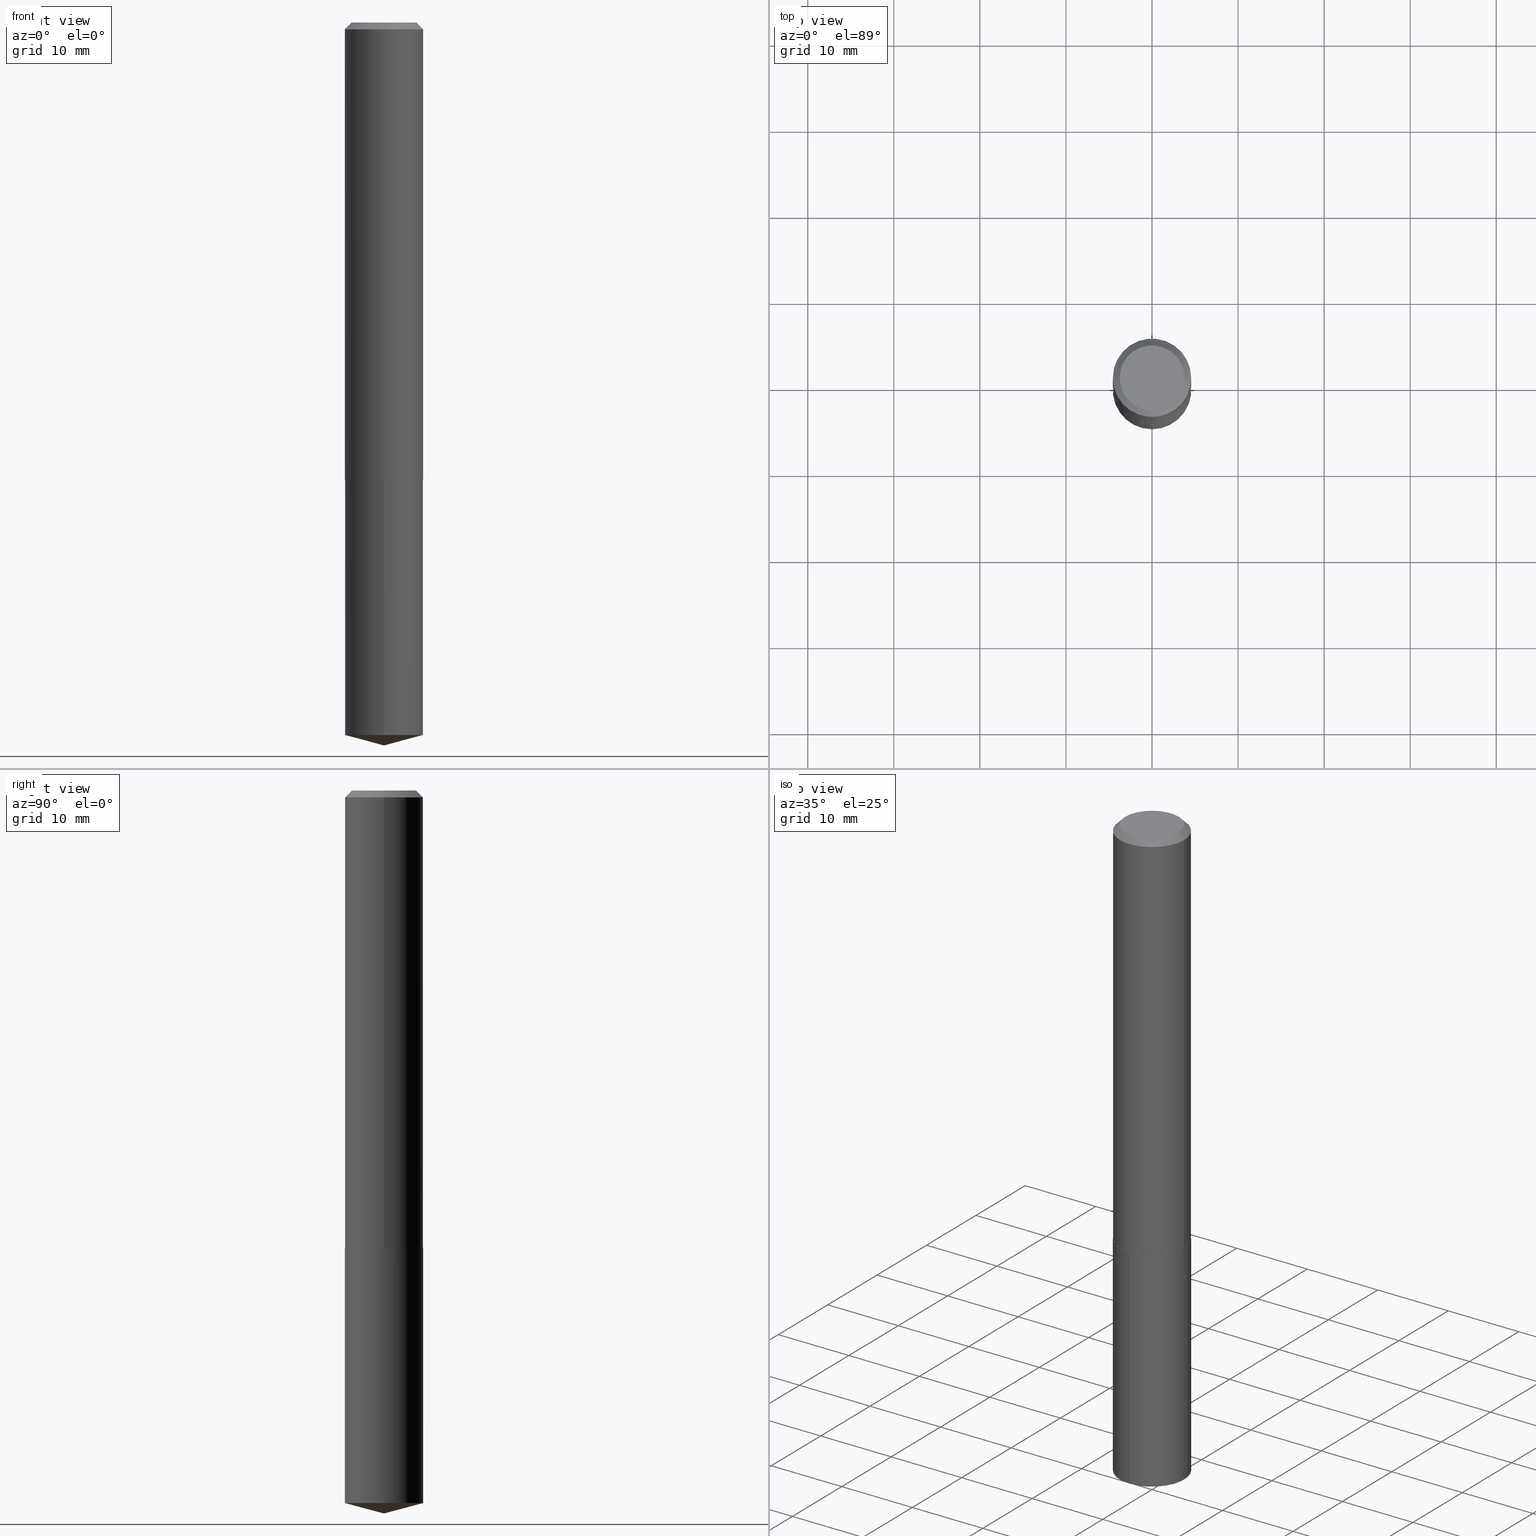
[diagram: canonical four-view strip — front | top / right | iso, engineering-drawing reading convention]
A machine part, canonical four-view strip (front | top / right | iso — engineering-drawing reading convention). The complete STEP part file that produces these views, byte-faithful:
ISO-10303-21;
HEADER;
FILE_DESCRIPTION (( 'STEP AP203' ),
    '1' );
FILE_NAME ('63081.STEP',
    '2024-04-23T09:43:38',
    ( '' ),
    ( '' ),
    'SwSTEP 2.0',
    'SolidWorks 2023',
    '' );
FILE_SCHEMA (( 'CONFIG_CONTROL_DESIGN' ));
ENDSEC;

DATA;
#1 = PERSON_AND_ORGANIZATION ( #337, #220 ) ;
#2 = ORIENTED_EDGE ( 'NONE', *, *, #243, .T. ) ;
#3 = EDGE_LOOP ( 'NONE', ( #5, #365, #210, #247 ) ) ;
#4 = CARTESIAN_POINT ( 'NONE',  ( 0.000000000000000000, 0.000000000000000000, 0.000000000000000000 ) ) ;
#5 = ORIENTED_EDGE ( 'NONE', *, *, #360, .F. ) ;
#6 = EDGE_CURVE ( 'NONE', #62, #131, #375, .T. ) ;
#7 = VERTEX_POINT ( 'NONE', #48 ) ;
#8 = APPROVAL_STATUS ( 'not_yet_approved' ) ;
#9 = AXIS2_PLACEMENT_3D ( 'NONE', #325, #85, #327 ) ;
#10 = ORIENTED_EDGE ( 'NONE', *, *, #243, .F. ) ;
#11 = EDGE_CURVE ( 'NONE', #131, #244, #172, .T. ) ;
#12 = DIRECTION ( 'NONE',  ( -1.000000000000000000, 6.982962677686267499E-15, 0.000000000000000000 ) ) ;
#13 = DIRECTION ( 'NONE',  ( 6.863315791527698204E-15, 0.9659258262890701996, 0.2588190451025132455 ) ) ;
#14 = DIRECTION ( 'NONE',  ( 2.438088387897960049E-29, -3.491481338843145188E-15, -1.000000000000000000 ) ) ;
#15 = VECTOR ( 'NONE', #354, 39.37007874015748143 ) ;
#16 = AXIS2_PLACEMENT_3D ( 'NONE', #143, #204, #58 ) ;
#17 = PERSON_AND_ORGANIZATION ( #337, #220 ) ;
#18 = EDGE_CURVE ( 'NONE', #121, #7, #60, .T. ) ;
#19 = DIRECTION ( 'NONE',  ( -6.982962677686265133E-15, -1.000000000000000000, 3.049788438363675772E-15 ) ) ;
#20 = CYLINDRICAL_SURFACE ( 'NONE', #130, 0.1791500000000000314 ) ;
#21 = CARTESIAN_POINT ( 'NONE',  ( 5.111274351807554765E-29, -7.297545146316060308E-15, -2.090100000000000513 ) ) ;
#22 = ORIENTED_EDGE ( 'NONE', *, *, #341, .F. ) ;
#23 = AXIS2_PLACEMENT_3D ( 'NONE', #218, #138, #136 ) ;
#24 = AXIS2_PLACEMENT_3D ( 'NONE', #63, #61, #277 ) ;
#25 = DIRECTION ( 'NONE',  ( -2.445468806185136597E-29, 3.491481338843145583E-15, 1.000000000000000000 ) ) ;
#26 = EDGE_CURVE ( 'NONE', #62, #244, #224, .T. ) ;
#27 = CARTESIAN_POINT ( 'NONE',  ( -1.250997763707443541E-15, -0.1791500000000073312, -2.090599999999999792 ) ) ;
#28 = CARTESIAN_POINT ( 'NONE',  ( 5.112497086210647566E-29, -7.299290886985481023E-15, -2.090600000000000236 ) ) ;
#29 = CONICAL_SURFACE ( 'NONE', #9, 0.1791500000000002535, 0.7853981633972434429 ) ;
#30 = CIRCLE ( 'NONE', #192, 0.1479000000000000037 ) ;
#31 = DIRECTION ( 'NONE',  ( 1.000000000000000000, -6.982962677686262766E-15, 0.000000000000000000 ) ) ;
#32 = PRODUCT_RELATED_PRODUCT_CATEGORY ( 'detail', '', ( #39 ) ) ;
#33 = ORIENTED_EDGE ( 'NONE', *, *, #26, .F. ) ;
#34 = ORIENTED_EDGE ( 'NONE', *, *, #236, .F. ) ;
#35 = EDGE_CURVE ( 'NONE', #154, #270, #335, .T. ) ;
#36 = CIRCLE ( 'NONE', #376, 0.1791500000000000314 ) ;
#37 =( GEOMETRIC_REPRESENTATION_CONTEXT ( 3 ) GLOBAL_UNCERTAINTY_ASSIGNED_CONTEXT ( ( #234 ) ) GLOBAL_UNIT_ASSIGNED_CONTEXT ( ( #328, #209, #86 ) ) REPRESENTATION_CONTEXT ( 'NONE', 'WORKASPACE' ) );
#38 = ORIENTED_EDGE ( 'NONE', *, *, #228, .F. ) ;
#39 = PRODUCT ( '63081', '63081', '', ( #88 ) ) ;
#40 = APPROVAL_DATE_TIME ( #92, #175 ) ;
#41 = APPROVAL ( #357, 'UNSPECIFIED' ) ;
#42 = ORIENTED_EDGE ( 'NONE', *, *, #11, .F. ) ;
#43 = DATE_AND_TIME ( #155, #312 ) ;
#44 = ORIENTED_EDGE ( 'NONE', *, *, #366, .F. ) ;
#45 = VERTEX_POINT ( 'NONE', #283 ) ;
#46 = CARTESIAN_POINT ( 'NONE',  ( 8.086906355680850210E-29, -1.154739902396725094E-14, -3.307100000000000151 ) ) ;
#47 = PERSON_AND_ORGANIZATION_ROLE ( 'classification_officer' ) ;
#48 = CARTESIAN_POINT ( 'NONE',  ( -0.1791500000000002535, -6.024607835201839024E-15, -2.090100000000000513 ) ) ;
#49 = ADVANCED_FACE ( 'NONE', ( #75 ), #141, .T. ) ;
#50 = CARTESIAN_POINT ( 'NONE',  ( 7.642090019328597407E-31, -1.091087918388489527E-16, -0.03125000000000018735 ) ) ;
#51 = CARTESIAN_POINT ( 'NONE',  ( 0.1791500000000001147, -1.250997763707495606E-15, 8.735670693838425178E-30 ) ) ;
#52 = LINE ( 'NONE', #27, #15 ) ;
#53 = EDGE_CURVE ( 'NONE', #217, #149, #358, .T. ) ;
#54 = CARTESIAN_POINT ( 'NONE',  ( 1.272937311114270588E-15, 0.1791499999999927040, -2.090600000000001124 ) ) ;
#55 = VECTOR ( 'NONE', #346, 39.37007874015748854 ) ;
#56 = APPROVAL_PERSON_ORGANIZATION ( #17, #326, #107 ) ;
#57 = DIRECTION ( 'NONE',  ( -6.982962677686265133E-15, -1.000000000000000000, 3.049788438363675772E-15 ) ) ;
#58 = DIRECTION ( 'NONE',  ( -6.982962677686265133E-15, -1.000000000000000000, 3.510303681827581269E-15 ) ) ;
#59 = DIRECTION ( 'NONE',  ( -2.445316547936515157E-29, 3.491699381321172837E-15, 1.000000000000000000 ) ) ;
#60 = CIRCLE ( 'NONE', #317, 0.1791500000000002535 ) ;
#61 = DIRECTION ( 'NONE',  ( 2.445316547936514877E-29, -3.491699381321172837E-15, -1.000000000000000000 ) ) ;
#62 = VERTEX_POINT ( 'NONE', #46 ) ;
#63 = CARTESIAN_POINT ( 'NONE',  ( 5.112497086210647566E-29, -7.299290886985481023E-15, -2.090600000000000236 ) ) ;
#64 = EDGE_LOOP ( 'NONE', ( #93, #66 ) ) ;
#65 = PERSON_AND_ORGANIZATION ( #337, #220 ) ;
#66 = ORIENTED_EDGE ( 'NONE', *, *, #228, .T. ) ;
#67 = AXIS2_PLACEMENT_3D ( 'NONE', #21, #201, #31 ) ;
#68 = AXIS2_PLACEMENT_3D ( 'NONE', #113, #352, #174 ) ;
#69 = ORIENTED_EDGE ( 'NONE', *, *, #324, .F. ) ;
#70 = MANIFOLD_SOLID_BREP ( 'Body-Move/Copy2[2]', #159 ) ;
#71 = ORIENTED_EDGE ( 'NONE', *, *, #53, .F. ) ;
#72 = CARTESIAN_POINT ( 'NONE',  ( 0.1791500000000000314, -1.360106555546343720E-15, -0.03125000000000018735 ) ) ;
#73 = VECTOR ( 'NONE', #285, 39.37007874015748143 ) ;
#74 = FACE_OUTER_BOUND ( 'NONE', #278, .T. ) ;
#75 = FACE_OUTER_BOUND ( 'NONE', #339, .T. ) ;
#76 = CARTESIAN_POINT ( 'NONE',  ( 7.969841897314090708E-29, -1.137933079738900462E-14, -3.259096902175965482 ) ) ;
#77 = CC_DESIGN_DATE_AND_TIME_ASSIGNMENT ( #379, #314, ( #281 ) ) ;
#78 = DIRECTION ( 'NONE',  ( 1.000000000000000000, -6.982962677686267499E-15, 0.000000000000000000 ) ) ;
#79 = EDGE_CURVE ( 'NONE', #121, #154, #221, .T. ) ;
#80 = FACE_OUTER_BOUND ( 'NONE', #361, .T. ) ;
#81 = DIRECTION ( 'NONE',  ( 1.000000000000000000, -6.982962677686267499E-15, 4.876180342865737915E-29 ) ) ;
#82 = CARTESIAN_POINT ( 'NONE',  ( 5.112497086210647566E-29, -7.299290886985481023E-15, -2.090600000000000236 ) ) ;
#83 = DIRECTION ( 'NONE',  ( -1.000000000000000000, 6.982962677686267499E-15, 0.000000000000000000 ) ) ;
#84 = DESIGN_CONTEXT ( 'detailed design', #384, 'design' ) ;
#85 = DIRECTION ( 'NONE',  ( -2.445468806185136597E-29, 3.491481338843145583E-15, 1.000000000000000000 ) ) ;
#86 =( NAMED_UNIT ( * ) SI_UNIT ( $, .STERADIAN. ) SOLID_ANGLE_UNIT ( ) );
#87 = CONICAL_SURFACE ( 'NONE', #16, 146.9311341562574853, 1.308996938995751425 ) ;
#88 = MECHANICAL_CONTEXT ( 'NONE', #329, 'mechanical' ) ;
#89 = EDGE_LOOP ( 'NONE', ( #212, #158 ) ) ;
#90 = PERSON_AND_ORGANIZATION ( #337, #220 ) ;
#91 = ORIENTED_EDGE ( 'NONE', *, *, #304, .F. ) ;
#92 = DATE_AND_TIME ( #330, #241 ) ;
#93 = ORIENTED_EDGE ( 'NONE', *, *, #341, .T. ) ;
#94 = CLOSED_SHELL ( 'NONE', ( #101, #161, #280, #301, #372 ) ) ;
#95 = EDGE_LOOP ( 'NONE', ( #97, #71 ) ) ;
#96 = CC_DESIGN_PERSON_AND_ORGANIZATION_ASSIGNMENT ( #299, #367, ( #248 ) ) ;
#97 = ORIENTED_EDGE ( 'NONE', *, *, #181, .F. ) ;
#98 = DIRECTION ( 'NONE',  ( -6.982962677686265133E-15, -1.000000000000000000, 3.510303681827581269E-15 ) ) ;
#99 = CALENDAR_DATE ( 2024, 23, 4 ) ;
#100 = CONICAL_SURFACE ( 'NONE', #321, 146.9311341562574853, 1.308996938995751425 ) ;
#101 = ADVANCED_FACE ( 'NONE', ( #284 ), #20, .T. ) ;
#102 = LINE ( 'NONE', #105, #73 ) ;
#103 = VECTOR ( 'NONE', #362, 39.37007874015748143 ) ;
#104 = PERSON_AND_ORGANIZATION ( #337, #220 ) ;
#105 = CARTESIAN_POINT ( 'NONE',  ( 0.1791500000000000314, -1.338167008139618831E-15, -0.03125000000000018735 ) ) ;
#106 = CC_DESIGN_DATE_AND_TIME_ASSIGNMENT ( #43, #157, ( #248 ) ) ;
#107 = APPROVAL_ROLE ( '' ) ;
#108 = CARTESIAN_POINT ( 'NONE',  ( 5.111274351807554765E-29, -7.297545146316060308E-15, -2.090100000000000513 ) ) ;
#109 = DIRECTION ( 'NONE',  ( -2.445468806185136597E-29, 3.491481338843145583E-15, 1.000000000000000000 ) ) ;
#110 = CIRCLE ( 'NONE', #23, 0.1791500000000000314 ) ;
#111 = LOCAL_TIME ( 5, 43, 38.00000000000000000, #135 ) ;
#112 = CARTESIAN_POINT ( 'NONE',  ( -1.182960040634198066E-47, 1.688953421129324663E-33, 4.837354856632103020E-19 ) ) ;
#113 = CARTESIAN_POINT ( 'NONE',  ( 5.112497086210647566E-29, -7.299290886985481023E-15, -2.090600000000000236 ) ) ;
#114 = FACE_OUTER_BOUND ( 'NONE', #3, .T. ) ;
#115 = CIRCLE ( 'NONE', #265, 0.1791500000000002535 ) ;
#116 = EDGE_CURVE ( 'NONE', #270, #154, #110, .T. ) ;
#117 = CC_DESIGN_APPROVAL ( #326, ( #281 ) ) ;
#118 = CARTESIAN_POINT ( 'NONE',  ( 0.000000000000000000, 0.000000000000000000, 0.000000000000000000 ) ) ;
#119 = FACE_OUTER_BOUND ( 'NONE', #306, .T. ) ;
#120 = DIRECTION ( 'NONE',  ( -0.7071067811864026886, 7.493145998869830357E-15, 0.7071067811866923458 ) ) ;
#121 = VERTEX_POINT ( 'NONE', #258 ) ;
#122 = CIRCLE ( 'NONE', #343, 0.1479000000000000037 ) ;
#123 = ADVANCED_FACE ( 'NONE', ( #380 ), #378, .F. ) ;
#124 = ORIENTED_EDGE ( 'NONE', *, *, #181, .T. ) ;
#125 = DIRECTION ( 'NONE',  ( 1.000000000000000000, 0.000000000000000000, 0.000000000000000000 ) ) ;
#126 = ORIENTED_EDGE ( 'NONE', *, *, #133, .F. ) ;
#127 = CARTESIAN_POINT ( 'NONE',  ( -0.1791500000000001147, 1.272937311114220298E-15, -8.812272214191669091E-30 ) ) ;
#128 = ORIENTED_EDGE ( 'NONE', *, *, #366, .T. ) ;
#129 = EDGE_CURVE ( 'NONE', #208, #154, #102, .T. ) ;
#130 = AXIS2_PLACEMENT_3D ( 'NONE', #134, #165, #19 ) ;
#131 = VERTEX_POINT ( 'NONE', #348 ) ;
#132 = DIRECTION ( 'NONE',  ( 1.000000000000000000, -6.982962677686267499E-15, 4.876180342865737915E-29 ) ) ;
#133 = EDGE_CURVE ( 'NONE', #208, #303, #122, .T. ) ;
#134 = CARTESIAN_POINT ( 'NONE',  ( 5.112497086210647566E-29, -7.299290886985481023E-15, -2.090600000000000236 ) ) ;
#135 = COORDINATED_UNIVERSAL_TIME_OFFSET ( 5, 0, .BEHIND. ) ;
#136 = DIRECTION ( 'NONE',  ( 1.000000000000000000, -6.982962677686267499E-15, 0.000000000000000000 ) ) ;
#137 = AXIS2_PLACEMENT_3D ( 'NONE', #4, #305, #125 ) ;
#138 = DIRECTION ( 'NONE',  ( -2.445468806185136597E-29, 3.491481338843145583E-15, 1.000000000000000000 ) ) ;
#139 = ORIENTED_EDGE ( 'NONE', *, *, #129, .F. ) ;
#140 = PLANE ( 'NONE',  #178 ) ;
#141 = CONICAL_SURFACE ( 'NONE', #240, 0.1791500000000000314, 0.7853981633974453924 ) ;
#142 = DIRECTION ( 'NONE',  ( -2.445316547936515157E-29, 3.491699381321172837E-15, 1.000000000000000000 ) ) ;
#143 = CARTESIAN_POINT ( 'NONE',  ( -8.818508037009527002E-28, 1.259215363952110425E-13, 36.06297874015748306 ) ) ;
#144 = CARTESIAN_POINT ( 'NONE',  ( 0.1791500000000002535, -8.548542910023556308E-15, -2.090100000000000513 ) ) ;
#145 = CC_DESIGN_PERSON_AND_ORGANIZATION_ASSIGNMENT ( #104, #47, ( #281 ) ) ;
#146 = AXIS2_PLACEMENT_3D ( 'NONE', #50, #160, #78 ) ;
#147 = FACE_OUTER_BOUND ( 'NONE', #95, .T. ) ;
#148 = ADVANCED_FACE ( 'NONE', ( #74 ), #223, .T. ) ;
#149 = VERTEX_POINT ( 'NONE', #227 ) ;
#150 = DATE_AND_TIME ( #359, #271 ) ;
#151 = EDGE_LOOP ( 'NONE', ( #124, #300, #239, #180 ) ) ;
#152 = AXIS2_PLACEMENT_3D ( 'NONE', #264, #356, #319 ) ;
#153 = CC_DESIGN_APPROVAL ( #41, ( #298 ) ) ;
#154 = VERTEX_POINT ( 'NONE', #72 ) ;
#155 = CALENDAR_DATE ( 2024, 23, 4 ) ;
#156 = ORIENTED_EDGE ( 'NONE', *, *, #387, .T. ) ;
#157 = DATE_TIME_ROLE ( 'creation_date' ) ;
#158 = ORIENTED_EDGE ( 'NONE', *, *, #133, .T. ) ;
#159 = CLOSED_SHELL ( 'NONE', ( #49, #148, #231, #261, #257, #169, #273, #123 ) ) ;
#160 = DIRECTION ( 'NONE',  ( -2.445468806185136597E-29, 3.491481338843145583E-15, 1.000000000000000000 ) ) ;
#161 = ADVANCED_FACE ( 'NONE', ( #190 ), #100, .T. ) ;
#162 = CARTESIAN_POINT ( 'NONE',  ( 7.642090019328597407E-31, -1.091087918388489527E-16, -0.03125000000000018735 ) ) ;
#163 = EDGE_CURVE ( 'NONE', #149, #121, #255, .T. ) ;
#164 = DATE_AND_TIME ( #99, #111 ) ;
#165 = DIRECTION ( 'NONE',  ( -2.445316547936515157E-29, 3.491699381321172837E-15, 1.000000000000000000 ) ) ;
#166 = APPROVAL_STATUS ( 'not_yet_approved' ) ;
#167 = DIRECTION ( 'NONE',  ( -2.445468806185136597E-29, 3.491481338843145583E-15, 1.000000000000000000 ) ) ;
#168 = ORIENTED_EDGE ( 'NONE', *, *, #6, .T. ) ;
#169 = ADVANCED_FACE ( 'NONE', ( #119 ), #386, .T. ) ;
#170 = DIRECTION ( 'NONE',  ( -2.445316547936515157E-29, 3.491699381321172837E-15, 1.000000000000000000 ) ) ;
#171 = CARTESIAN_POINT ( 'NONE',  ( 1.272937311114299381E-15, 0.1791499999999886794, -3.259096902175965926 ) ) ;
#172 = CIRCLE ( 'NONE', #311, 0.1791500000000000314 ) ;
#173 = LOCAL_TIME ( 5, 43, 38.00000000000000000, #216 ) ;
#174 = DIRECTION ( 'NONE',  ( -6.982962677686265133E-15, -1.000000000000000000, 3.049788438363675772E-15 ) ) ;
#175 = APPROVAL ( #8, 'UNSPECIFIED' ) ;
#176 = CARTESIAN_POINT ( 'NONE',  ( 5.111274351807554765E-29, -7.297545146316060308E-15, -2.090100000000000513 ) ) ;
#177 = DIRECTION ( 'NONE',  ( 0.7071067811864026886, -2.468850131080739687E-15, 0.7071067811866923458 ) ) ;
#178 = AXIS2_PLACEMENT_3D ( 'NONE', #230, #263, #266 ) ;
#179 = APPROVAL_ROLE ( '' ) ;
#180 = ORIENTED_EDGE ( 'NONE', *, *, #163, .F. ) ;
#181 = EDGE_CURVE ( 'NONE', #149, #217, #353, .T. ) ;
#182 = PLANE ( 'NONE',  #24 ) ;
#183 = VERTEX_POINT ( 'NONE', #389 ) ;
#184 = ORIENTED_EDGE ( 'NONE', *, *, #35, .F. ) ;
#185 = CIRCLE ( 'NONE', #250, 0.1791500000000000314 ) ;
#186 = VECTOR ( 'NONE', #177, 39.37007874015748143 ) ;
#187 = EDGE_LOOP ( 'NONE', ( #139, #91, #156, #368 ) ) ;
#188 = APPLICATION_PROTOCOL_DEFINITION ( 'international standard', 'config_control_design', 1994, #329 ) ;
#189 = ORIENTED_EDGE ( 'NONE', *, *, #79, .F. ) ;
#190 = FACE_OUTER_BOUND ( 'NONE', #215, .T. ) ;
#191 = VECTOR ( 'NONE', #315, 39.37007874015748143 ) ;
#192 = AXIS2_PLACEMENT_3D ( 'NONE', #112, #351, #81 ) ;
#193 = CARTESIAN_POINT ( 'NONE',  ( -5.914800203170990329E-48, 8.444767105646623317E-34, 2.418677428316051510E-19 ) ) ;
#194 = DIRECTION ( 'NONE',  ( 1.000000000000000000, -6.982962677686262766E-15, 0.000000000000000000 ) ) ;
#195 = CARTESIAN_POINT ( 'NONE',  ( 8.087548560295110977E-29, -1.154648734475812350E-14, -3.307100000000000151 ) ) ;
#196 = AXIS2_PLACEMENT_3D ( 'NONE', #318, #109, #345 ) ;
#197 = CARTESIAN_POINT ( 'NONE',  ( -1.182960040634198066E-47, 1.688953421129324663E-33, 4.837354856632103020E-19 ) ) ;
#198 = DIRECTION ( 'NONE',  ( 1.000000000000000000, -6.982962677686262766E-15, 0.000000000000000000 ) ) ;
#199 = MANIFOLD_SOLID_BREP ( 'Body-Move/Copy2[1]', #94 ) ;
#200 = CARTESIAN_POINT ( 'NONE',  ( -0.1786500000000005584, -6.027257062375948647E-15, -2.090600000000000236 ) ) ;
#201 = DIRECTION ( 'NONE',  ( -2.445468806185136597E-29, 3.491481338843145583E-15, 1.000000000000000000 ) ) ;
#202 = VECTOR ( 'NONE', #142, 39.37007874015748143 ) ;
#203 = CC_DESIGN_PERSON_AND_ORGANIZATION_ASSIGNMENT ( #65, #269, ( #39 ) ) ;
#204 = DIRECTION ( 'NONE',  ( -2.445316547936515157E-29, 3.491699381321172837E-15, 1.000000000000000000 ) ) ;
#205 = CARTESIAN_POINT ( 'NONE',  ( 7.969841897314090708E-29, -1.137933079738900462E-14, -3.259096902175965482 ) ) ;
#206 = APPROVAL_ROLE ( '' ) ;
#207 = COORDINATED_UNIVERSAL_TIME_OFFSET ( 5, 0, .BEHIND. ) ;
#208 = VERTEX_POINT ( 'NONE', #390 ) ;
#209 =( NAMED_UNIT ( * ) PLANE_ANGLE_UNIT ( ) SI_UNIT ( $, .RADIAN. ) );
#210 = ORIENTED_EDGE ( 'NONE', *, *, #163, .T. ) ;
#211 = FACE_OUTER_BOUND ( 'NONE', #64, .T. ) ;
#212 = ORIENTED_EDGE ( 'NONE', *, *, #304, .T. ) ;
#213 = CC_DESIGN_PERSON_AND_ORGANIZATION_ASSIGNMENT ( #374, #340, ( #298 ) ) ;
#214 = DIRECTION ( 'NONE',  ( -2.445468806185136877E-29, 3.491481338843145188E-15, 1.000000000000000000 ) ) ;
#215 = EDGE_LOOP ( 'NONE', ( #336, #333, #42 ) ) ;
#216 = COORDINATED_UNIVERSAL_TIME_OFFSET ( 5, 0, .BEHIND. ) ;
#217 = VERTEX_POINT ( 'NONE', #200 ) ;
#218 = CARTESIAN_POINT ( 'NONE',  ( 7.642090019328597407E-31, -1.091087918388489527E-16, -0.03125000000000018735 ) ) ;
#219 = AXIS2_PLACEMENT_3D ( 'NONE', #259, #167, #286 ) ;
#220 = ORGANIZATION ( 'UNSPECIFIED', 'UNSPECIFIED', '' ) ;
#221 = LINE ( 'NONE', #51, #191 ) ;
#222 = DIMENSIONAL_EXPONENTS ( 1.000000000000000000, 0.000000000000000000, 0.000000000000000000, 0.000000000000000000, 0.000000000000000000, 0.000000000000000000, 0.000000000000000000 ) ;
#223 = CYLINDRICAL_SURFACE ( 'NONE', #196, 0.1791500000000001147 ) ;
#224 = LINE ( 'NONE', #195, #296 ) ;
#225 = CONICAL_SURFACE ( 'NONE', #279, 0.1791500000000000314, 0.7853981633974453924 ) ;
#226 = VECTOR ( 'NONE', #214, 39.37007874015748143 ) ;
#227 = CARTESIAN_POINT ( 'NONE',  ( 0.1786500000000005584, -8.546797169354135593E-15, -2.090600000000000236 ) ) ;
#228 = EDGE_CURVE ( 'NONE', #45, #183, #36, .T. ) ;
#229 = CYLINDRICAL_SURFACE ( 'NONE', #291, 0.1791500000000000314 ) ;
#230 = CARTESIAN_POINT ( 'NONE',  ( 7.344856802391227384E-29, -4.102424715390461743E-15, -2.090600000000000236 ) ) ;
#231 = ADVANCED_FACE ( 'NONE', ( #289 ), #29, .T. ) ;
#232 = DIRECTION ( 'NONE',  ( 2.445468806185136597E-29, -3.491481338843145583E-15, -1.000000000000000000 ) ) ;
#233 = CC_DESIGN_SECURITY_CLASSIFICATION ( #281, ( #298 ) ) ;
#234 = UNCERTAINTY_MEASURE_WITH_UNIT (LENGTH_MEASURE( 1.000000000000000082E-05 ), #328, 'distance_accuracy_value', 'NONE');
#235 = DIRECTION ( 'NONE',  ( -2.445468806185136597E-29, 3.491481338843145583E-15, 1.000000000000000000 ) ) ;
#236 = EDGE_CURVE ( 'NONE', #244, #131, #185, .T. ) ;
#237 = APPLICATION_PROTOCOL_DEFINITION ( 'international standard', 'config_control_design', 1994, #384 ) ;
#238 = COORDINATED_UNIVERSAL_TIME_OFFSET ( 5, 0, .BEHIND. ) ;
#239 = ORIENTED_EDGE ( 'NONE', *, *, #18, .F. ) ;
#240 = AXIS2_PLACEMENT_3D ( 'NONE', #162, #316, #12 ) ;
#241 = LOCAL_TIME ( 5, 43, 38.00000000000000000, #267 ) ;
#242 = APPROVAL_DATE_TIME ( #150, #41 ) ;
#243 = EDGE_CURVE ( 'NONE', #131, #183, #52, .T. ) ;
#244 = VERTEX_POINT ( 'NONE', #171 ) ;
#245 = PRODUCT_DEFINITION_SHAPE ( 'NONE', 'NONE',  #248 ) ;
#246 = LENGTH_MEASURE_WITH_UNIT ( LENGTH_MEASURE( 0.02539999999999999897 ), #332 );
#247 = ORIENTED_EDGE ( 'NONE', *, *, #287, .F. ) ;
#248 = PRODUCT_DEFINITION ( 'UNKNOWN', '', #298, #84 ) ;
#249 = ORIENTED_EDGE ( 'NONE', *, *, #129, .T. ) ;
#250 = AXIS2_PLACEMENT_3D ( 'NONE', #205, #59, #385 ) ;
#251 = CC_DESIGN_APPROVAL ( #175, ( #248 ) ) ;
#252 = ORIENTED_EDGE ( 'NONE', *, *, #287, .T. ) ;
#253 = CARTESIAN_POINT ( 'NONE',  ( -8.818508037009527002E-28, 1.259215363952110425E-13, 36.06297874015748306 ) ) ;
#254 = PERSON_AND_ORGANIZATION_ROLE ( 'creator' ) ;
#255 = LINE ( 'NONE', #144, #186 ) ;
#256 = DIRECTION ( 'NONE',  ( -1.000000000000000000, 6.982962677686265922E-15, -4.876176775795935793E-29 ) ) ;
#257 = ADVANCED_FACE ( 'NONE', ( #114 ), #349, .T. ) ;
#258 = CARTESIAN_POINT ( 'NONE',  ( 0.1791500000000002535, -8.548542910023556308E-15, -2.090100000000000513 ) ) ;
#259 = CARTESIAN_POINT ( 'NONE',  ( 5.112497086210647566E-29, -7.299290886985481023E-15, -2.090600000000000236 ) ) ;
#260 = DIRECTION ( 'NONE',  ( -2.445316547936515157E-29, 3.491699381321172837E-15, 1.000000000000000000 ) ) ;
#261 = ADVANCED_FACE ( 'NONE', ( #147 ), #140, .F. ) ;
#262 = DIRECTION ( 'NONE',  ( 1.000000000000000000, -6.982962677686267499E-15, 4.876176775795936353E-29 ) ) ;
#263 = DIRECTION ( 'NONE',  ( -2.438088387897960049E-29, 3.491481338843145188E-15, 1.000000000000000000 ) ) ;
#264 = CARTESIAN_POINT ( 'NONE',  ( 5.112497086210647566E-29, -7.299290886985481023E-15, -2.090600000000000236 ) ) ;
#265 = AXIS2_PLACEMENT_3D ( 'NONE', #176, #25, #198 ) ;
#266 = DIRECTION ( 'NONE',  ( 1.000000000000000000, -6.982962677686265922E-15, 4.876176775795935793E-29 ) ) ;
#267 = COORDINATED_UNIVERSAL_TIME_OFFSET ( 5, 0, .BEHIND. ) ;
#268 = ORIENTED_EDGE ( 'NONE', *, *, #79, .T. ) ;
#269 = PERSON_AND_ORGANIZATION_ROLE ( 'design_owner' ) ;
#270 = VERTEX_POINT ( 'NONE', #292 ) ;
#271 = LOCAL_TIME ( 5, 43, 38.00000000000000000, #238 ) ;
#272 = CARTESIAN_POINT ( 'NONE',  ( -0.1791500000000002535, -6.024607835201839024E-15, -2.090100000000000513 ) ) ;
#273 = ADVANCED_FACE ( 'NONE', ( #323 ), #225, .T. ) ;
#274 = ORIENTED_EDGE ( 'NONE', *, *, #35, .T. ) ;
#275 = LINE ( 'NONE', #334, #103 ) ;
#276 = ORIENTED_EDGE ( 'NONE', *, *, #18, .T. ) ;
#277 = DIRECTION ( 'NONE',  ( 6.982962677686265922E-15, 1.000000000000000000, -3.491699381321172837E-15 ) ) ;
#278 = EDGE_LOOP ( 'NONE', ( #276, #128, #184, #189 ) ) ;
#279 = AXIS2_PLACEMENT_3D ( 'NONE', #350, #232, #83 ) ;
#280 = ADVANCED_FACE ( 'NONE', ( #80 ), #87, .T. ) ;
#281 = SECURITY_CLASSIFICATION ( '', '', #309 ) ;
#282 = APPROVAL_DATE_TIME ( #164, #326 ) ;
#283 = CARTESIAN_POINT ( 'NONE',  ( 1.272937311114299184E-15, 0.1791499999999927040, -2.090600000000001124 ) ) ;
#284 = FACE_OUTER_BOUND ( 'NONE', #338, .T. ) ;
#285 = DIRECTION ( 'NONE',  ( 0.7071067811865454633, -7.319954787623248157E-15, -0.7071067811865495711 ) ) ;
#286 = DIRECTION ( 'NONE',  ( 1.000000000000000000, -6.982962677686265133E-15, 0.000000000000000000 ) ) ;
#287 = EDGE_CURVE ( 'NONE', #7, #121, #115, .T. ) ;
#288 = DIRECTION ( 'NONE',  ( -2.445468806185136597E-29, 3.491481338843145583E-15, 1.000000000000000000 ) ) ;
#289 = FACE_OUTER_BOUND ( 'NONE', #151, .T. ) ;
#290 = ORIENTED_EDGE ( 'NONE', *, *, #236, .T. ) ;
#291 = AXIS2_PLACEMENT_3D ( 'NONE', #28, #260, #57 ) ;
#292 = CARTESIAN_POINT ( 'NONE',  ( -0.1791500000000000314, -2.430389657963233420E-15, -0.03125000000000018735 ) ) ;
#293 = LINE ( 'NONE', #272, #377 ) ;
#294 = ADVANCED_BREP_SHAPE_REPRESENTATION ( '63081', ( #199, #70, #137 ), #37 ) ;
#295 = FACE_OUTER_BOUND ( 'NONE', #363, .T. ) ;
#296 = VECTOR ( 'NONE', #13, 39.37007874015748854 ) ;
#297 = DIRECTION ( 'NONE',  ( -6.982962677686265133E-15, -1.000000000000000000, 3.049788438363675772E-15 ) ) ;
#298 = PRODUCT_DEFINITION_FORMATION_WITH_SPECIFIED_SOURCE ( 'ANY', '', #39, .NOT_KNOWN. ) ;
#299 = PERSON_AND_ORGANIZATION ( #337, #220 ) ;
#300 = ORIENTED_EDGE ( 'NONE', *, *, #360, .T. ) ;
#301 = ADVANCED_FACE ( 'NONE', ( #295 ), #229, .T. ) ;
#302 = LINE ( 'NONE', #127, #226 ) ;
#303 = VERTEX_POINT ( 'NONE', #383 ) ;
#304 = EDGE_CURVE ( 'NONE', #303, #208, #30, .T. ) ;
#305 = DIRECTION ( 'NONE',  ( 0.000000000000000000, 0.000000000000000000, 1.000000000000000000 ) ) ;
#306 = EDGE_LOOP ( 'NONE', ( #44, #252, #268, #331 ) ) ;
#307 = ORIENTED_EDGE ( 'NONE', *, *, #387, .F. ) ;
#308 = ORIENTED_EDGE ( 'NONE', *, *, #324, .T. ) ;
#309 = SECURITY_CLASSIFICATION_LEVEL ( 'unclassified' ) ;
#310 = CARTESIAN_POINT ( 'NONE',  ( 8.086906355680849089E-29, -1.154739902396724936E-14, -3.307100000000000151 ) ) ;
#311 = AXIS2_PLACEMENT_3D ( 'NONE', #76, #313, #342 ) ;
#312 = LOCAL_TIME ( 5, 43, 38.00000000000000000, #207 ) ;
#313 = DIRECTION ( 'NONE',  ( -2.445316547936515157E-29, 3.491699381321172837E-15, 1.000000000000000000 ) ) ;
#314 = DATE_TIME_ROLE ( 'classification_date' ) ;
#315 = DIRECTION ( 'NONE',  ( -2.445468806185136877E-29, 3.491481338843145188E-15, 1.000000000000000000 ) ) ;
#316 = DIRECTION ( 'NONE',  ( 2.445468806185136597E-29, -3.491481338843145583E-15, -1.000000000000000000 ) ) ;
#317 = AXIS2_PLACEMENT_3D ( 'NONE', #108, #288, #194 ) ;
#318 = CARTESIAN_POINT ( 'NONE',  ( 0.000000000000000000, 0.000000000000000000, 0.000000000000000000 ) ) ;
#319 = DIRECTION ( 'NONE',  ( 1.000000000000000000, -6.982962677686265133E-15, 0.000000000000000000 ) ) ;
#320 = LINE ( 'NONE', #54, #202 ) ;
#321 = AXIS2_PLACEMENT_3D ( 'NONE', #253, #373, #98 ) ;
#322 = APPROVAL_PERSON_ORGANIZATION ( #1, #41, #206 ) ;
#323 = FACE_OUTER_BOUND ( 'NONE', #187, .T. ) ;
#324 = EDGE_CURVE ( 'NONE', #244, #45, #320, .T. ) ;
#325 = CARTESIAN_POINT ( 'NONE',  ( 5.111274351807554765E-29, -7.297545146316060308E-15, -2.090100000000000513 ) ) ;
#326 = APPROVAL ( #166, 'UNSPECIFIED' ) ;
#327 = DIRECTION ( 'NONE',  ( 1.000000000000000000, -6.982962677686262766E-15, 0.000000000000000000 ) ) ;
#328 =( CONVERSION_BASED_UNIT ( 'INCH', #246 ) LENGTH_UNIT ( ) NAMED_UNIT ( #222 ) );
#329 = APPLICATION_CONTEXT ( 'configuration controlled 3d designs of mechanical parts and assemblies' ) ;
#330 = CALENDAR_DATE ( 2024, 23, 4 ) ;
#331 = ORIENTED_EDGE ( 'NONE', *, *, #116, .F. ) ;
#332 =( LENGTH_UNIT ( ) NAMED_UNIT ( * ) SI_UNIT ( $, .METRE. ) );
#333 = ORIENTED_EDGE ( 'NONE', *, *, #26, .T. ) ;
#334 = CARTESIAN_POINT ( 'NONE',  ( -0.1791500000000000314, 1.141888971868646111E-15, -0.03125000000000018735 ) ) ;
#335 = CIRCLE ( 'NONE', #146, 0.1791500000000000314 ) ;
#336 = ORIENTED_EDGE ( 'NONE', *, *, #6, .F. ) ;
#337 = PERSON ( 'UNSPECIFIED', 'UNSPECIFIED', 'UNSPECIFIED', ('UNSPECIFIED'), ('UNSPECIFIED'), ('UNSPECIFIED') ) ;
#338 = EDGE_LOOP ( 'NONE', ( #371, #308, #22, #10 ) ) ;
#339 = EDGE_LOOP ( 'NONE', ( #126, #249, #274, #307 ) ) ;
#340 = PERSON_AND_ORGANIZATION_ROLE ( 'design_supplier' ) ;
#341 = EDGE_CURVE ( 'NONE', #183, #45, #344, .T. ) ;
#342 = DIRECTION ( 'NONE',  ( -6.982962677686265133E-15, -1.000000000000000000, 3.049788438363675772E-15 ) ) ;
#343 = AXIS2_PLACEMENT_3D ( 'NONE', #197, #381, #132 ) ;
#344 = CIRCLE ( 'NONE', #68, 0.1791500000000000314 ) ;
#345 = DIRECTION ( 'NONE',  ( 1.000000000000000000, -6.982962677686267499E-15, 4.876176775795936353E-29 ) ) ;
#346 = DIRECTION ( 'NONE',  ( -6.745023994389843866E-15, -0.9659258262890684232, 0.2588190451025200178 ) ) ;
#347 = CALENDAR_DATE ( 2024, 23, 4 ) ;
#348 = CARTESIAN_POINT ( 'NONE',  ( -1.250997763707415339E-15, -0.1791500000000114667, -3.259096902175965038 ) ) ;
#349 = CONICAL_SURFACE ( 'NONE', #67, 0.1791500000000002535, 0.7853981633972434429 ) ;
#350 = CARTESIAN_POINT ( 'NONE',  ( 7.642090019328597407E-31, -1.091087918388489527E-16, -0.03125000000000018735 ) ) ;
#351 = DIRECTION ( 'NONE',  ( -2.445468806185136597E-29, 3.491481338843145583E-15, 1.000000000000000000 ) ) ;
#352 = DIRECTION ( 'NONE',  ( -2.445316547936515157E-29, 3.491699381321172837E-15, 1.000000000000000000 ) ) ;
#353 = CIRCLE ( 'NONE', #152, 0.1786500000000005584 ) ;
#354 = DIRECTION ( 'NONE',  ( -2.445316547936515157E-29, 3.491699381321172837E-15, 1.000000000000000000 ) ) ;
#355 = CC_DESIGN_PERSON_AND_ORGANIZATION_ASSIGNMENT ( #90, #254, ( #298 ) ) ;
#356 = DIRECTION ( 'NONE',  ( -2.445468806185136597E-29, 3.491481338843145583E-15, 1.000000000000000000 ) ) ;
#357 = APPROVAL_STATUS ( 'not_yet_approved' ) ;
#358 = CIRCLE ( 'NONE', #219, 0.1786500000000005584 ) ;
#359 = CALENDAR_DATE ( 2024, 23, 4 ) ;
#360 = EDGE_CURVE ( 'NONE', #217, #7, #293, .T. ) ;
#361 = EDGE_LOOP ( 'NONE', ( #33, #168, #34 ) ) ;
#362 = DIRECTION ( 'NONE',  ( -0.7071067811865454633, 2.468850131082235367E-15, -0.7071067811865495711 ) ) ;
#363 = EDGE_LOOP ( 'NONE', ( #69, #290, #2, #38 ) ) ;
#364 = PERSON_AND_ORGANIZATION ( #337, #220 ) ;
#365 = ORIENTED_EDGE ( 'NONE', *, *, #53, .T. ) ;
#366 = EDGE_CURVE ( 'NONE', #7, #270, #302, .T. ) ;
#367 = PERSON_AND_ORGANIZATION_ROLE ( 'creator' ) ;
#368 = ORIENTED_EDGE ( 'NONE', *, *, #116, .T. ) ;
#369 = APPROVAL_PERSON_ORGANIZATION ( #364, #175, #179 ) ;
#370 = SHAPE_DEFINITION_REPRESENTATION ( #245, #294 ) ;
#371 = ORIENTED_EDGE ( 'NONE', *, *, #11, .T. ) ;
#372 = ADVANCED_FACE ( 'NONE', ( #211 ), #182, .F. ) ;
#373 = DIRECTION ( 'NONE',  ( -2.445316547936515157E-29, 3.491699381321172837E-15, 1.000000000000000000 ) ) ;
#374 = PERSON_AND_ORGANIZATION ( #337, #220 ) ;
#375 = LINE ( 'NONE', #310, #55 ) ;
#376 = AXIS2_PLACEMENT_3D ( 'NONE', #82, #170, #297 ) ;
#377 = VECTOR ( 'NONE', #120, 39.37007874015748143 ) ;
#378 = PLANE ( 'NONE',  #382 ) ;
#379 = DATE_AND_TIME ( #347, #173 ) ;
#380 = FACE_OUTER_BOUND ( 'NONE', #89, .T. ) ;
#381 = DIRECTION ( 'NONE',  ( -2.445468806185136597E-29, 3.491481338843145583E-15, 1.000000000000000000 ) ) ;
#382 = AXIS2_PLACEMENT_3D ( 'NONE', #193, #14, #256 ) ;
#383 = CARTESIAN_POINT ( 'NONE',  ( -0.1479000000000000037, 1.087334575949222546E-15, 4.837354856557970125E-19 ) ) ;
#384 = APPLICATION_CONTEXT ( 'configuration controlled 3d designs of mechanical parts and assemblies' ) ;
#385 = DIRECTION ( 'NONE',  ( -6.982962677686265133E-15, -1.000000000000000000, 3.049788438363675772E-15 ) ) ;
#386 = CYLINDRICAL_SURFACE ( 'NONE', #388, 0.1791500000000001147 ) ;
#387 = EDGE_CURVE ( 'NONE', #303, #270, #275, .T. ) ;
#388 = AXIS2_PLACEMENT_3D ( 'NONE', #118, #235, #262 ) ;
#389 = CARTESIAN_POINT ( 'NONE',  ( -1.250997763707443541E-15, -0.1791500000000073312, -2.090599999999999792 ) ) ;
#390 = CARTESIAN_POINT ( 'NONE',  ( 0.1479000000000000037, -1.176417331005014297E-15, 4.837354856709345330E-19 ) ) ;
ENDSEC;
END-ISO-10303-21;
